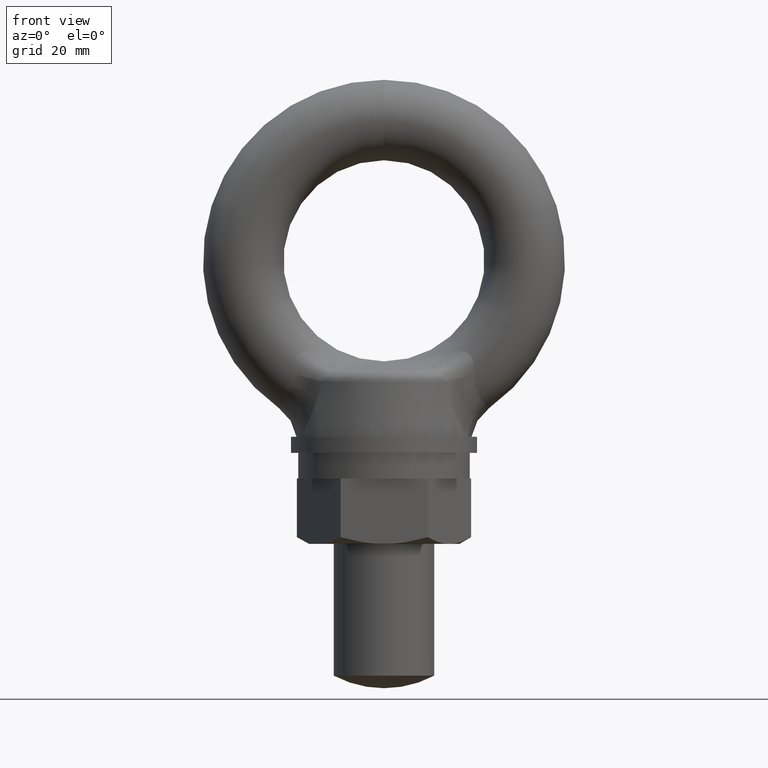
[diagram: clean part render]
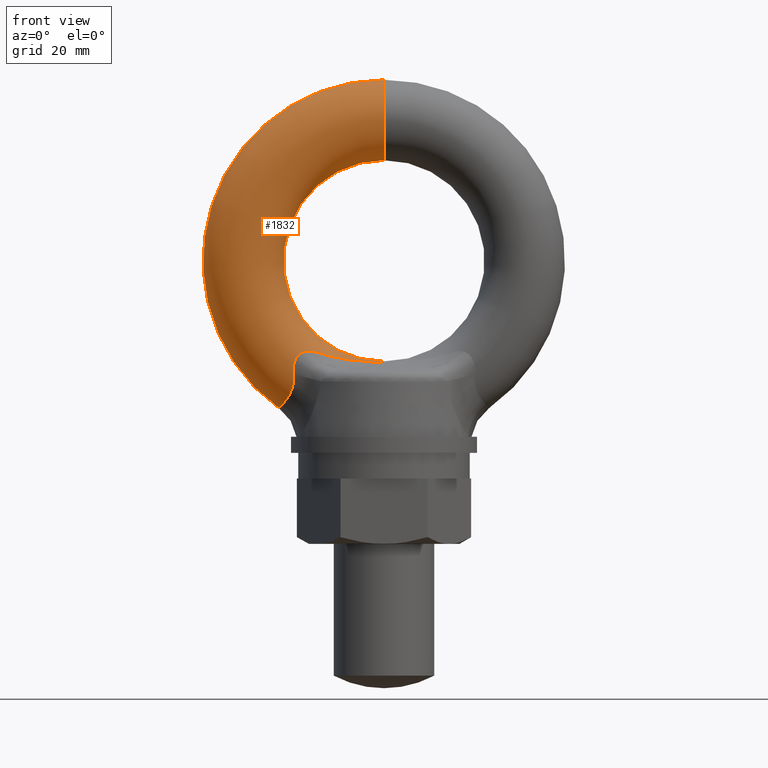
[diagram: same view with one face highlighted and labeled with its STEP entity id]
A machine part, front view. The second image highlights one B-rep face of the part: STEP entity #1832.
In plain terms, the highlighted toroidal blend (fillet) surface has major radius 28 mm and minor (blend) radius 8 mm.
Its self-contained STEP definition (entity closure, byte-faithful):
#1426 = ORIENTED_EDGE ( 'NONE', *, *, #1427, .T. ) ;
#1427 = EDGE_CURVE ( 'NONE', #1624, #1428, #1970, .T. ) ;
#1428 = VERTEX_POINT ( 'NONE', #1969 ) ;
#1429 = ORIENTED_EDGE ( 'NONE', *, *, #1430, .T. ) ;
#1430 = EDGE_CURVE ( 'NONE', #1428, #1431, #1959, .T. ) ;
#1431 = VERTEX_POINT ( 'NONE', #1960 ) ;
#1432 = ORIENTED_EDGE ( 'NONE', *, *, #1433, .T. ) ;
#1433 = EDGE_CURVE ( 'NONE', #1431, #1434, #1958, .T. ) ;
#1434 = VERTEX_POINT ( 'NONE', #1957 ) ;
#1435 = ORIENTED_EDGE ( 'NONE', *, *, #1436, .T. ) ;
#1436 = EDGE_CURVE ( 'NONE', #1434, #1437, #1928, .T. ) ;
#1437 = VERTEX_POINT ( 'NONE', #1929 ) ;
#1438 = ORIENTED_EDGE ( 'NONE', *, *, #1439, .T. ) ;
#1439 = EDGE_CURVE ( 'NONE', #1437, #1440, #1868, .T. ) ;
#1440 = VERTEX_POINT ( 'NONE', #1849 ) ;
#1623 = EDGE_CURVE ( 'NONE', #1837, #1624, #3057, .T. ) ;
#1624 = VERTEX_POINT ( 'NONE', #3053 ) ;
#1625 = ORIENTED_EDGE ( 'NONE', *, *, #1828, .F. ) ;
#1828 = EDGE_CURVE ( 'NONE', #1838, #1440, #7533, .T. ) ;
#1832 = ADVANCED_FACE ( 'NONE', ( #7742 ), #7251, .T. ) ;
#1833 = EDGE_LOOP ( 'NONE', ( #1835, #1839, #1426, #1429, #1432, #1435, #1438, #1625 ) ) ;
#1835 = ORIENTED_EDGE ( 'NONE', *, *, #1836, .F. ) ;
#1836 = EDGE_CURVE ( 'NONE', #1837, #1838, #7461, .T. ) ;
#1837 = VERTEX_POINT ( 'NONE', #7403 ) ;
#1838 = VERTEX_POINT ( 'NONE', #7402 ) ;
#1839 = ORIENTED_EDGE ( 'NONE', *, *, #1623, .T. ) ;
#1849 = CARTESIAN_POINT ( 'NONE',  ( 0.0000000000000000000, 9.796850830579018100E-016, -20.00000000000000000 ) ) ;
#1850 = DIRECTION ( 'NONE',  ( 0.0000000000000000000, 0.0000000000000000000, 1.000000000000000000 ) ) ;
#1851 = CARTESIAN_POINT ( 'NONE',  ( -6.801776097265342600E-013, -1.648912988659337200, -20.17177632180642600 ) ) ;
#1852 = CARTESIAN_POINT ( 'NONE',  ( -0.2927174952643083500, -1.648912988659391600, -20.17177632180643000 ) ) ;
#1853 = CARTESIAN_POINT ( 'NONE',  ( -0.5844058307862495200, -1.682952176673653500, -20.17240612736618000 ) ) ;
#1854 = CARTESIAN_POINT ( 'NONE',  ( -1.158679247754199400, -1.790291525782435900, -20.17148670969874800 ) ) ;
#1855 = CARTESIAN_POINT ( 'NONE',  ( -1.442697845560770200, -1.861999122008241200, -20.16971613795676200 ) ) ;
#1856 = CARTESIAN_POINT ( 'NONE',  ( -2.288186762667789900, -2.095962064465069400, -20.15610451816338500 ) ) ;
#1857 = CARTESIAN_POINT ( 'NONE',  ( -2.844284425707784600, -2.275894574762710400, -20.13577273363174000 ) ) ;
#1858 = CARTESIAN_POINT ( 'NONE',  ( -4.507113680566904500, -2.822904474455817200, -20.03377866517443800 ) ) ;
#1859 = CARTESIAN_POINT ( 'NONE',  ( -5.607621948508660000, -3.204019384009087400, -19.91148190844952000 ) ) ;
#1860 = CARTESIAN_POINT ( 'NONE',  ( -7.792840797011284500, -3.963240333849474600, -19.57153100779552800 ) ) ;
#1861 = CARTESIAN_POINT ( 'NONE',  ( -8.874770829690676900, -4.343217868695373500, -19.35477693205997000 ) ) ;
#1862 = CARTESIAN_POINT ( 'NONE',  ( -11.02624808514249800, -5.094259217671004900, -18.85268854059859900 ) ) ;
#1863 = CARTESIAN_POINT ( 'NONE',  ( -12.09568278882729900, -5.465681299482348300, -18.56740552890373800 ) ) ;
#1864 = CARTESIAN_POINT ( 'NONE',  ( -13.16581114616844100, -5.822891640927250200, -18.26337593279295000 ) ) ;
#1865 = DIRECTION ( 'NONE',  ( -1.000000000000000000, 0.0000000000000000000, 0.0000000000000000000 ) ) ;
#1866 = CARTESIAN_POINT ( 'NONE',  ( 0.0000000000000000000, 0.0000000000000000000, -28.00000000000000000 ) ) ;
#1867 = AXIS2_PLACEMENT_3D ( 'NONE', #1866, #1865, #1850 ) ;
#1868 = CIRCLE ( 'NONE', #1867, 8.000000000000000000 ) ;
#1869 = CARTESIAN_POINT ( 'NONE',  ( -13.16581114616844100, -5.822891640927250200, -18.26337593279295000 ) ) ;
#1870 = CARTESIAN_POINT ( 'NONE',  ( -13.49608025271707000, -5.933135930324516100, -18.16954458781173500 ) ) ;
#1871 = CARTESIAN_POINT ( 'NONE',  ( -13.82544064071039000, -6.053619954093565300, -18.08939103995022200 ) ) ;
#1872 = CARTESIAN_POINT ( 'NONE',  ( -14.48640084289624300, -6.316706671593726300, -17.97827653573514100 ) ) ;
#1873 = CARTESIAN_POINT ( 'NONE',  ( -14.81750220859130400, -6.459337599431634700, -17.94770816610432000 ) ) ;
#1874 = CARTESIAN_POINT ( 'NONE',  ( -15.46841800058392600, -6.757654925999480300, -17.97081371513874300 ) ) ;
#1875 = CARTESIAN_POINT ( 'NONE',  ( -15.79371041505116900, -6.916048541418006400, -18.02615464871732000 ) ) ;
#1876 = CARTESIAN_POINT ( 'NONE',  ( -16.25075426370440100, -7.145089189322589200, -18.19840523469892800 ) ) ;
#1877 = CARTESIAN_POINT ( 'NONE',  ( -16.39998693967268700, -7.220948621053674200, -18.27151688570332100 ) ) ;
#1878 = CARTESIAN_POINT ( 'NONE',  ( -16.67968600936423200, -7.363606258302809200, -18.44515517041799100 ) ) ;
#1879 = CARTESIAN_POINT ( 'NONE',  ( -16.81098070684610200, -7.430801401975548600, -18.54565475779688900 ) ) ;
#1880 = CARTESIAN_POINT ( 'NONE',  ( -17.18029630242248700, -7.618353206800730200, -18.88785364446993100 ) ) ;
#1920 = CARTESIAN_POINT ( 'NONE',  ( -17.39227668821254400, -7.723481714237320400, -19.17235907743152600 ) ) ;
#1921 = CARTESIAN_POINT ( 'NONE',  ( -17.72613025056091700, -7.878836449315238100, -19.79191951133551100 ) ) ;
#1922 = CARTESIAN_POINT ( 'NONE',  ( -17.84987959965029000, -7.930441025987373200, -20.12360288935503400 ) ) ;
#1923 = CARTESIAN_POINT ( 'NONE',  ( -18.02878430504984000, -7.993391866429646200, -20.82156496729872000 ) ) ;
#1924 = CARTESIAN_POINT ( 'NONE',  ( -18.08006779931692900, -8.003476655799941500, -21.17334052725825800 ) ) ;
#1925 = CARTESIAN_POINT ( 'NONE',  ( -18.12260647304777500, -7.994548373312367700, -21.87993876361077000 ) ) ;
#1926 = CARTESIAN_POINT ( 'NONE',  ( -18.11356389061676700, -7.975347067419112300, -22.23504698598968300 ) ) ;
#1927 = CARTESIAN_POINT ( 'NONE',  ( -18.07603648372269600, -7.945372300636390300, -22.59188056541010100 ) ) ;
#1928 = B_SPLINE_CURVE_WITH_KNOTS ( 'NONE', 3,
 ( #1864, #1863, #1862, #1861, #1860, #1859, #1858, #1857, #1856, #1855, #1854, #1853, #1852, #1851 ),
 .UNSPECIFIED., .F., .F.,
 ( 4, 2, 2, 2, 2, 2, 4 ),
 ( 0.0000000000000000000, 0.003500089843752328500, 0.007000179687504657000, 0.01050026953125698600, 0.01225031445313314900, 0.01312533691407123200, 0.01400035937500931400 ),
 .UNSPECIFIED. ) ;
#1929 = CARTESIAN_POINT ( 'NONE',  ( -6.801776097265342600E-013, -1.648912988659337200, -20.17177632180642600 ) ) ;
#1930 = CARTESIAN_POINT ( 'NONE',  ( -18.07603648372269600, -7.945372300636390300, -22.59188056541010100 ) ) ;
#1931 = CARTESIAN_POINT ( 'NONE',  ( -18.04054247296236100, -7.917021695497933100, -22.92937936844069600 ) ) ;
#1932 = CARTESIAN_POINT ( 'NONE',  ( -18.02294308099864400, -7.875853099239254400, -23.26748662458160800 ) ) ;
#1933 = CARTESIAN_POINT ( 'NONE',  ( -18.03220608410685300, -7.758872730580870700, -23.93743834888671500 ) ) ;
#1934 = CARTESIAN_POINT ( 'NONE',  ( -18.05958299474205500, -7.682464375572249300, -24.27030221711562800 ) ) ;
#1935 = CARTESIAN_POINT ( 'NONE',  ( -18.15940386058476000, -7.491003069110534300, -24.90757987614506800 ) ) ;
#1936 = CARTESIAN_POINT ( 'NONE',  ( -18.23158240396274400, -7.375861049605298100, -25.21381516144220900 ) ) ;
#1937 = CARTESIAN_POINT ( 'NONE',  ( -18.41493576542328000, -7.101233061930403600, -25.80065298911719300 ) ) ;
#1938 = CARTESIAN_POINT ( 'NONE',  ( -18.52675622652377600, -6.940743853943771100, -26.08212912476770700 ) ) ;
#1939 = CARTESIAN_POINT ( 'NONE',  ( -18.89647459336574500, -6.400572332127117300, -26.86654441111974700 ) ) ;
#1940 = CARTESIAN_POINT ( 'NONE',  ( -19.18056745787588800, -5.971913125181020900, -27.30223167005001300 ) ) ;
#1952 = CARTESIAN_POINT ( 'NONE',  ( -19.59844567961869200, -5.230220122879413400, -27.86015683620673000 ) ) ;
#1953 = CARTESIAN_POINT ( 'NONE',  ( -19.73498437145486400, -4.969169817883323700, -28.02760433356973000 ) ) ;
#1954 = CARTESIAN_POINT ( 'NONE',  ( -19.99258515031222700, -4.426770075522743000, -28.32748653070828800 ) ) ;
#1955 = CARTESIAN_POINT ( 'NONE',  ( -20.11427152996070700, -4.144393324560699200, -28.46066157516942100 ) ) ;
#1956 = CARTESIAN_POINT ( 'NONE',  ( -20.22635143677735000, -3.850677136497690200, -28.57893508878720100 ) ) ;
#1957 = CARTESIAN_POINT ( 'NONE',  ( -13.16581114616844100, -5.822891640927250200, -18.26337593279295000 ) ) ;
#1958 = B_SPLINE_CURVE_WITH_KNOTS ( 'NONE', 3,
 ( #1927, #1926, #1925, #1924, #1923, #1922, #1921, #1920, #1880, #1879, #1878, #1877, #1876, #1875, #1874, #1873, #1872, #1871, #1870, #1869 ),
 .UNSPECIFIED., .F., .F.,
 ( 4, 2, 2, 2, 2, 2, 2, 2, 2, 4 ),
 ( 0.0000000000000000000, 0.001061884085914531300, 0.002123768171829062500, 0.003185652257743594000, 0.004247536343658125100, 0.004778478386615393400, 0.005309420429572662600, 0.006371304515487208000, 0.007433188601401748100, 0.008495072687316288300 ),
 .UNSPECIFIED. ) ;
#1959 = B_SPLINE_CURVE_WITH_KNOTS ( 'NONE', 3,
 ( #1956, #1955, #1954, #1953, #1952, #1940, #1939, #1938, #1937, #1936, #1935, #1934, #1933, #1932, #1931, #1930 ),
 .UNSPECIFIED., .F., .F.,
 ( 4, 2, 2, 2, 2, 2, 2, 4 ),
 ( 0.01610551802902950400, 0.01711428254501621100, 0.01812304706100292100, 0.02014057609297633900, 0.02114934060896304900, 0.02215810512494975600, 0.02316686964093646700, 0.02417563415692317700 ),
 .UNSPECIFIED. ) ;
#1960 = CARTESIAN_POINT ( 'NONE',  ( -18.07603648372269600, -7.945372300636390300, -22.59188056541010100 ) ) ;
#1961 = CARTESIAN_POINT ( 'NONE',  ( -20.22635143677735000, -3.850677136497690200, -28.57893508878720100 ) ) ;
#1962 = CARTESIAN_POINT ( 'NONE',  ( -20.45218448737302100, -3.258859881794897700, -28.81724781712205500 ) ) ;
#1963 = CARTESIAN_POINT ( 'NONE',  ( -20.59603642070353400, -2.638285941380809500, -29.01523389992597400 ) ) ;
#1964 = CARTESIAN_POINT ( 'NONE',  ( -20.73540599022221900, -1.666234829499332100, -29.22248958426969200 ) ) ;
#1965 = CARTESIAN_POINT ( 'NONE',  ( -20.76888547548118400, -1.332880035850257500, -29.27674697320311700 ) ) ;
#1966 = CARTESIAN_POINT ( 'NONE',  ( -20.81241227235394900, -0.6665516782714794300, -29.34876666378846700 ) ) ;
#1967 = CARTESIAN_POINT ( 'NONE',  ( -20.82274396233959400, -0.3333125823818162700, -29.36687477207695100 ) ) ;
#1968 = CARTESIAN_POINT ( 'NONE',  ( -20.82274396233959700, -4.779909794809850600E-016, -29.36687477207695500 ) ) ;
#1969 = CARTESIAN_POINT ( 'NONE',  ( -20.22635143677735000, -3.850677136497690200, -28.57893508878720100 ) ) ;
#1970 = B_SPLINE_CURVE_WITH_KNOTS ( 'NONE', 3,
 ( #1968, #1967, #1966, #1965, #1964, #1963, #1962, #1961 ),
 .UNSPECIFIED., .F., .F.,
 ( 4, 2, 2, 4 ),
 ( 0.004061130604967868800, 0.005076329865826367300, 0.006091529126684865800, 0.008121927648401864500 ),
 .UNSPECIFIED. ) ;
#3053 = CARTESIAN_POINT ( 'NONE',  ( -20.82274396233959700, -4.779909794809850600E-016, -29.36687477207695500 ) ) ;
#3054 = DIRECTION ( 'NONE',  ( 0.0000000000000000000, 0.0000000000000000000, -1.000000000000000000 ) ) ;
#3055 = DIRECTION ( 'NONE',  ( 0.0000000000000000000, -1.000000000000000000, 0.0000000000000000000 ) ) ;
#3056 = AXIS2_PLACEMENT_3D ( 'NONE', #3062, #3055, #3054 ) ;
#3057 = CIRCLE ( 'NONE', #3056, 36.00000000000000700 ) ;
#3062 = CARTESIAN_POINT ( 'NONE',  ( 0.0000000000000000000, 0.0000000000000000000, 0.0000000000000000000 ) ) ;
#7247 = AXIS2_PLACEMENT_3D ( 'NONE', #7406, #7405, #7404 ) ;
#7248 = DIRECTION ( 'NONE',  ( 0.0000000000000000000, 0.0000000000000000000, -1.000000000000000000 ) ) ;
#7249 = AXIS2_PLACEMENT_3D ( 'NONE', #7250, #7462, #7248 ) ;
#7250 = CARTESIAN_POINT ( 'NONE',  ( 0.0000000000000000000, 0.0000000000000000000, 0.0000000000000000000 ) ) ;
#7251 = TOROIDAL_SURFACE ( 'NONE', #7249, 28.00000000000000000, 8.000000000000000000 ) ;
#7402 = CARTESIAN_POINT ( 'NONE',  ( 2.449212707644754900E-015, 0.0000000000000000000, 20.00000000000000000 ) ) ;
#7403 = CARTESIAN_POINT ( 'NONE',  ( 4.408582873760558900E-015, 0.0000000000000000000, 36.00000000000000700 ) ) ;
#7404 = DIRECTION ( 'NONE',  ( -1.224606353822377000E-016, 0.0000000000000000000, -1.000000000000000000 ) ) ;
#7405 = DIRECTION ( 'NONE',  ( 1.000000000000000000, 0.0000000000000000000, -1.224606353822377300E-016 ) ) ;
#7406 = CARTESIAN_POINT ( 'NONE',  ( 3.428897790702656300E-015, 0.0000000000000000000, 28.00000000000000000 ) ) ;
#7461 = CIRCLE ( 'NONE', #7247, 8.000000000000000000 ) ;
#7462 = DIRECTION ( 'NONE',  ( 0.0000000000000000000, -1.000000000000000000, 0.0000000000000000000 ) ) ;
#7519 = DIRECTION ( 'NONE',  ( 0.0000000000000000000, 0.0000000000000000000, -1.000000000000000000 ) ) ;
#7520 = DIRECTION ( 'NONE',  ( 0.0000000000000000000, -1.000000000000000000, 0.0000000000000000000 ) ) ;
#7521 = CARTESIAN_POINT ( 'NONE',  ( 0.0000000000000000000, 9.796850830579018100E-016, 0.0000000000000000000 ) ) ;
#7522 = AXIS2_PLACEMENT_3D ( 'NONE', #7521, #7520, #7519 ) ;
#7533 = CIRCLE ( 'NONE', #7522, 20.00000000000000000 ) ;
#7742 = FACE_OUTER_BOUND ( 'NONE', #1833, .T. ) ;